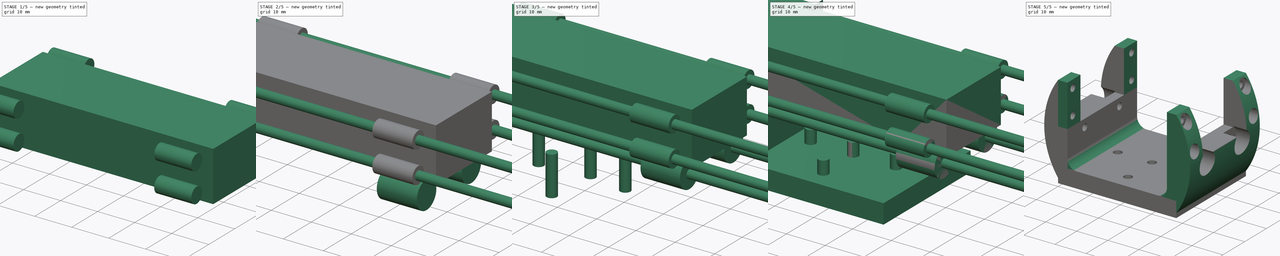
[diagram: build sequence overview — one tinted view per stage of 5, left to right]
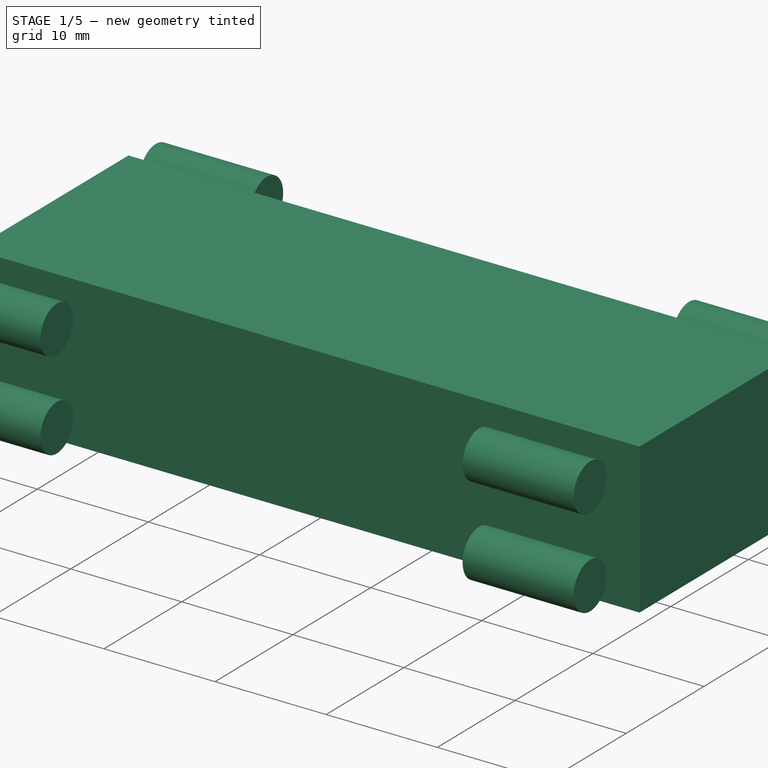
[diagram: stage 1 of 5 — iso view after this stage's code; geometry added in this stage tinted green]
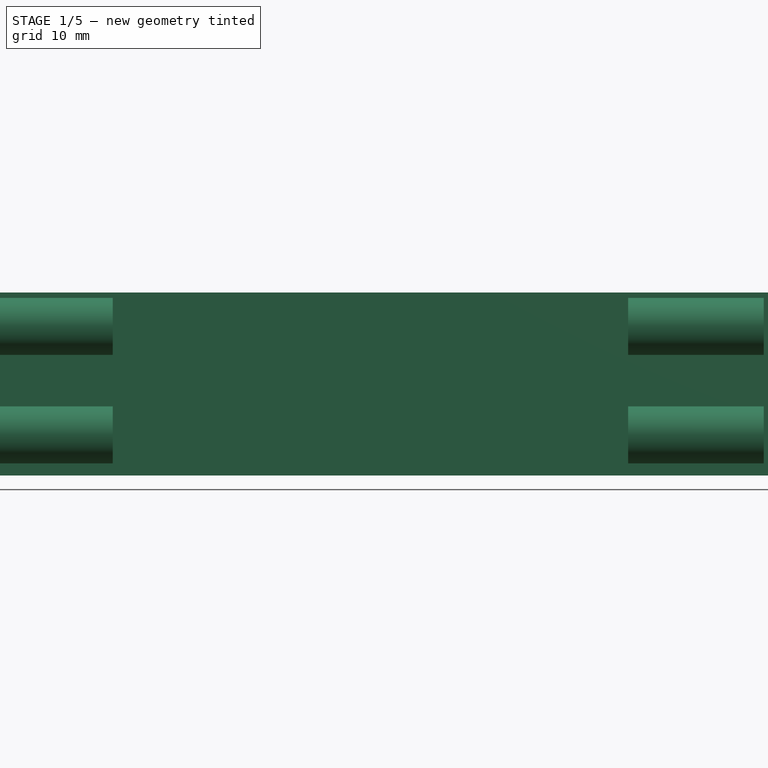
[diagram: stage 1 of 5 — front view after this stage's code; geometry added in this stage tinted green]
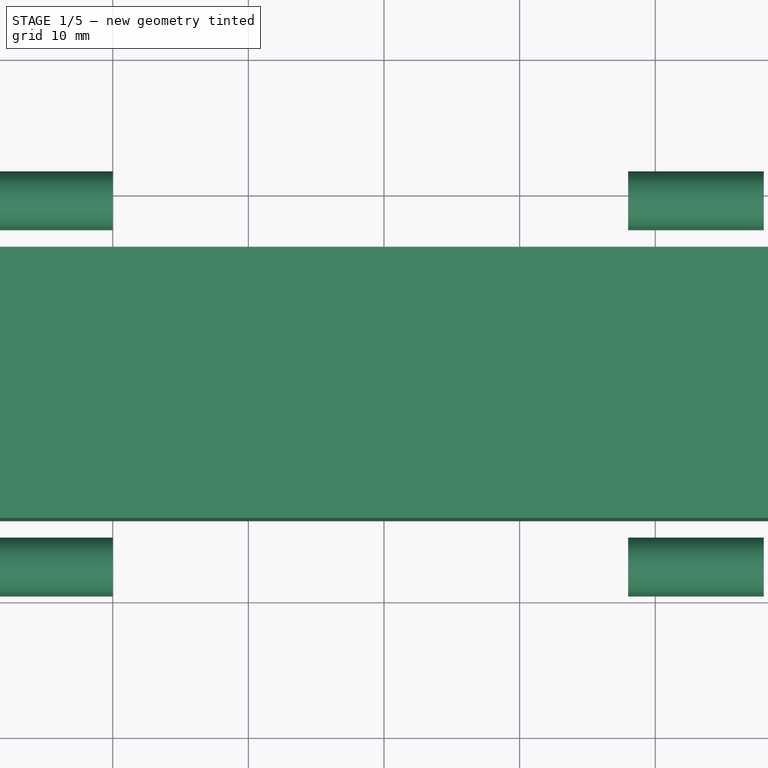
[diagram: stage 1 of 5 — top view after this stage's code; geometry added in this stage tinted green]
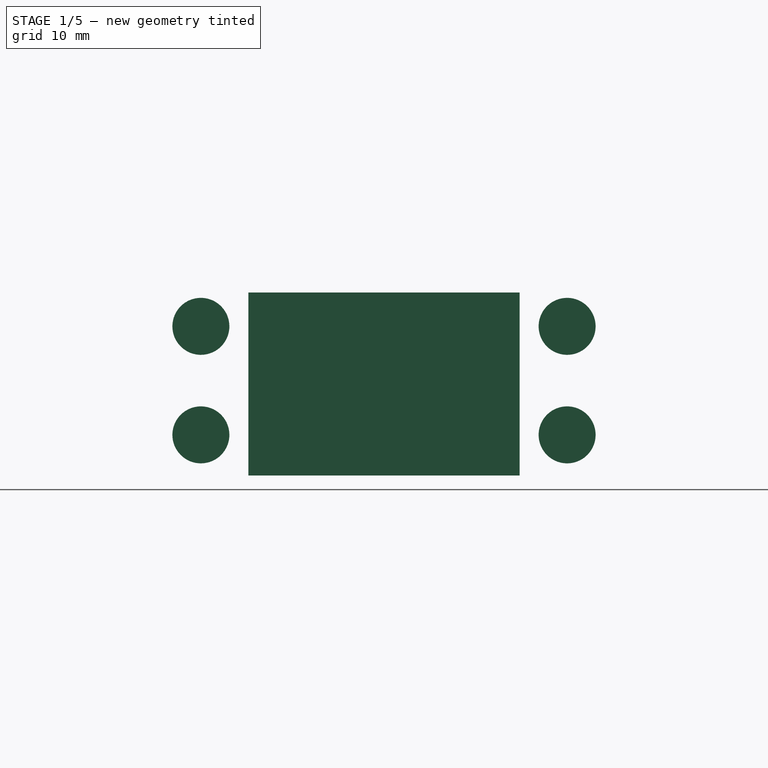
[diagram: stage 1 of 5 — right view after this stage's code; geometry added in this stage tinted green]
FCSTD DOCUMENT  (FreeCAD 0.15R4671 (Git))
Label: top_ax_12_short
License: CC-BY 3.0
LicenseURL: http://creativecommons.org/licenses/by/3.0/
objects: Part::Cylinder×23, Part::MultiFuse×9, Part::Box×8, Sketcher::SketchObject×1, Part::Extrusion×1, Part::Mirroring×1, Part::Cut×1, Part::Fillet×1
note: 45 computed .brp shape members not serialized (recipe doc carries the construction recipe); baked Part::Feature solids carry a one-line shape summary decoded from their .brp

FEATURE [Part::Cylinder] Cylinder015
  Angle = 360
  Height = 10
  Placement = pos=(-10,2.5,41) rot=(0,1,0;1.5708rad)
  Radius = 2.1
FEATURE [Part::Cylinder] Cylinder016
  Angle = 360
  Height = 10
  Placement = pos=(-10,2.5,33) rot=(0,1,0;1.5708rad)
  Radius = 2.1
FEATURE [Part::Cylinder] Cylinder017
  Angle = 360
  Height = 10
  Placement = pos=(-10,29.5,41) rot=(0,1,0;1.5708rad)
  Radius = 2.1
FEATURE [Part::Cylinder] Cylinder018
  Angle = 360
  Height = 10
  Placement = pos=(38,29.5,33) rot=(0,1,0;1.5708rad)
  Radius = 2.1
FEATURE [Part::Cylinder] Cylinder019
  Angle = 360
  Height = 10
  Placement = pos=(38,2.5,41) rot=(0,1,0;1.5708rad)
  Radius = 2.1
FEATURE [Part::Cylinder] Cylinder020
  Angle = 360
  Height = 10
  Placement = pos=(38,2.5,33) rot=(0,1,0;1.5708rad)
  Radius = 2.1
FEATURE [Part::Cylinder] Cylinder021
  Angle = 360
  Height = 10
  Placement = pos=(38,29.5,41) rot=(0,1,0;1.5708rad)
  Radius = 2.1
FEATURE [Part::Cylinder] Cylinder022
  Angle = 360
  Height = 10
  Placement = pos=(-10,29.5,33) rot=(0,1,0;1.5708rad)
  Radius = 2.1
FEATURE [Part::Box] Box007
  Height = 13.5
  Length = 60
  Placement = pos=(-10,6,30) rot=(0,0,1;0rad)
  Width = 20
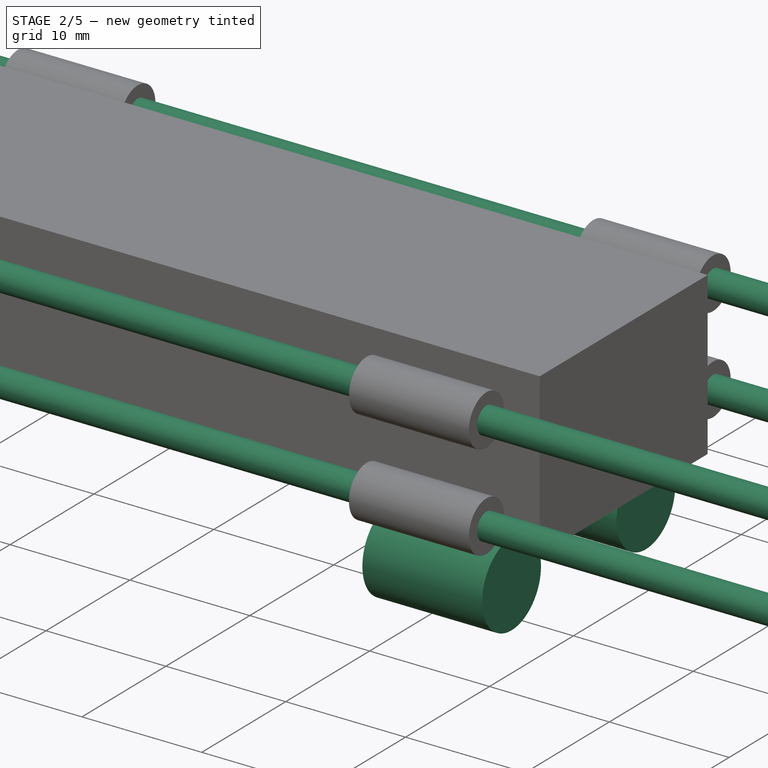
[diagram: stage 2 of 5 — iso view after this stage's code; geometry added in this stage tinted green]
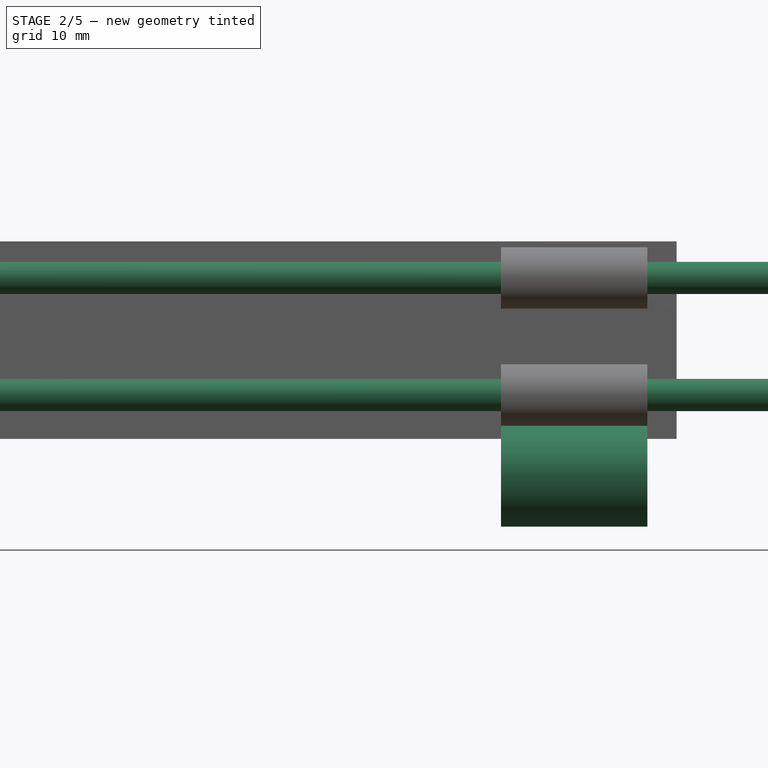
[diagram: stage 2 of 5 — front view after this stage's code; geometry added in this stage tinted green]
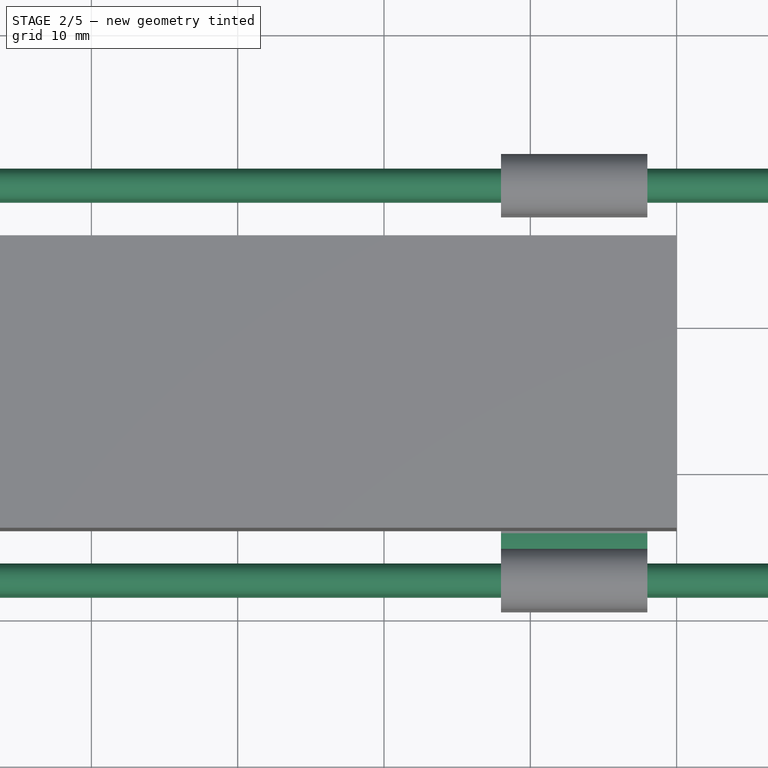
[diagram: stage 2 of 5 — top view after this stage's code; geometry added in this stage tinted green]
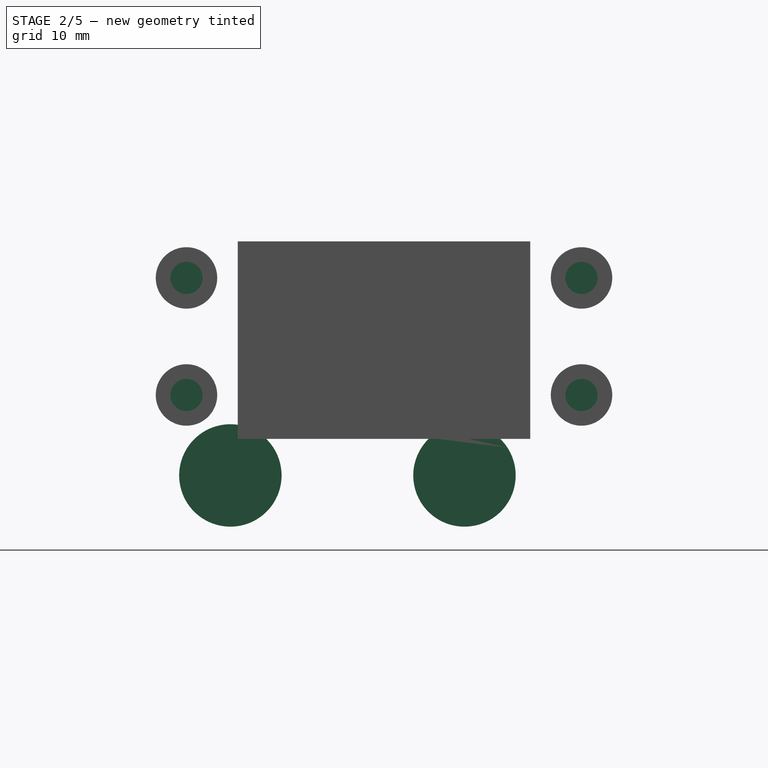
[diagram: stage 2 of 5 — right view after this stage's code; geometry added in this stage tinted green]
FEATURE [Part::Cylinder] Cylinder002
  Angle = 360
  Height = 10
  Placement = pos=(-10,5.5,27.5) rot=(0,1,0;1.5708rad)
  Radius = 3.5
FEATURE [Part::Cylinder] Cylinder003
  Angle = 360
  Height = 10
  Placement = pos=(-10,21.5,27.5) rot=(0,1,0;1.5708rad)
  Radius = 3.5
FEATURE [Part::Cylinder] Cylinder004
  Angle = 360
  Height = 10
  Placement = pos=(38,5.5,27.5) rot=(0,1,0;1.5708rad)
  Radius = 3.5
FEATURE [Part::Cylinder] Cylinder005
  Angle = 360
  Height = 10
  Placement = pos=(38,21.5,27.5) rot=(0,1,0;1.5708rad)
  Radius = 3.5
FEATURE [Part::Cylinder] Cylinder011
  Angle = 360
  Height = 100
  Placement = pos=(-20,2.5,41) rot=(0,1,0;1.5708rad)
  Radius = 1.1
FEATURE [Part::Cylinder] Cylinder012
  Angle = 360
  Height = 100
  Placement = pos=(-20,2.5,33) rot=(0,1,0;1.5708rad)
  Radius = 1.1
FEATURE [Part::Cylinder] Cylinder013
  Angle = 360
  Height = 100
  Placement = pos=(-20,29.5,41) rot=(0,1,0;1.5708rad)
  Radius = 1.1
FEATURE [Part::Cylinder] Cylinder014
  Angle = 360
  Height = 100
  Placement = pos=(-20,29.5,33) rot=(0,1,0;1.5708rad)
  Radius = 1.1
FEATURE [Part::MultiFuse] Fusion009
  Shapes = -> [Box007,Cylinder022,Cylinder021,Cylinder020,Cylinder019,Cylinder018,Cylinder017,Cylinder016,Cylinder015,Cylinder014,Cylinder013,Cylinder012,Cylinder011]
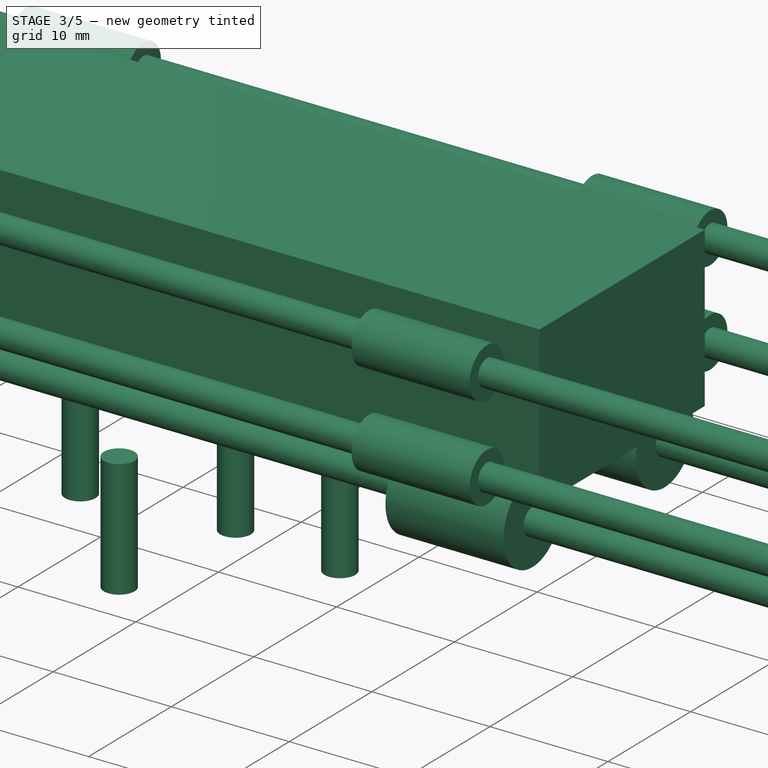
[diagram: stage 3 of 5 — iso view after this stage's code; geometry added in this stage tinted green]
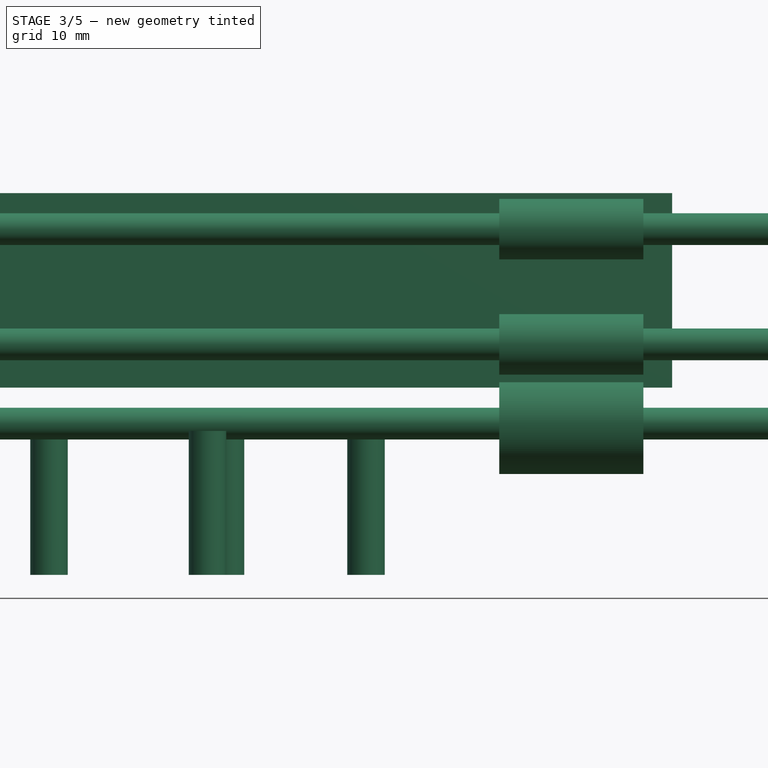
[diagram: stage 3 of 5 — front view after this stage's code; geometry added in this stage tinted green]
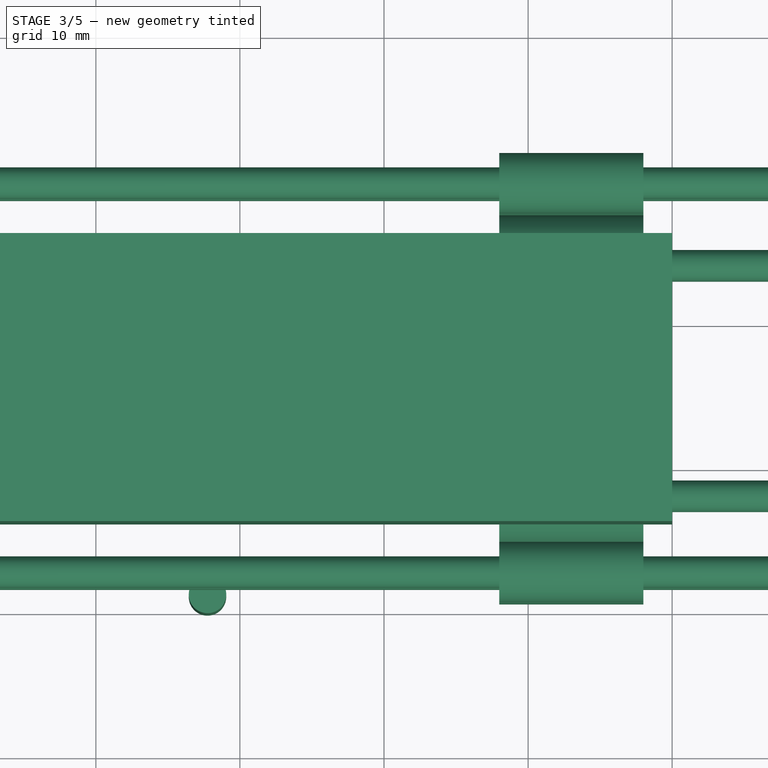
[diagram: stage 3 of 5 — top view after this stage's code; geometry added in this stage tinted green]
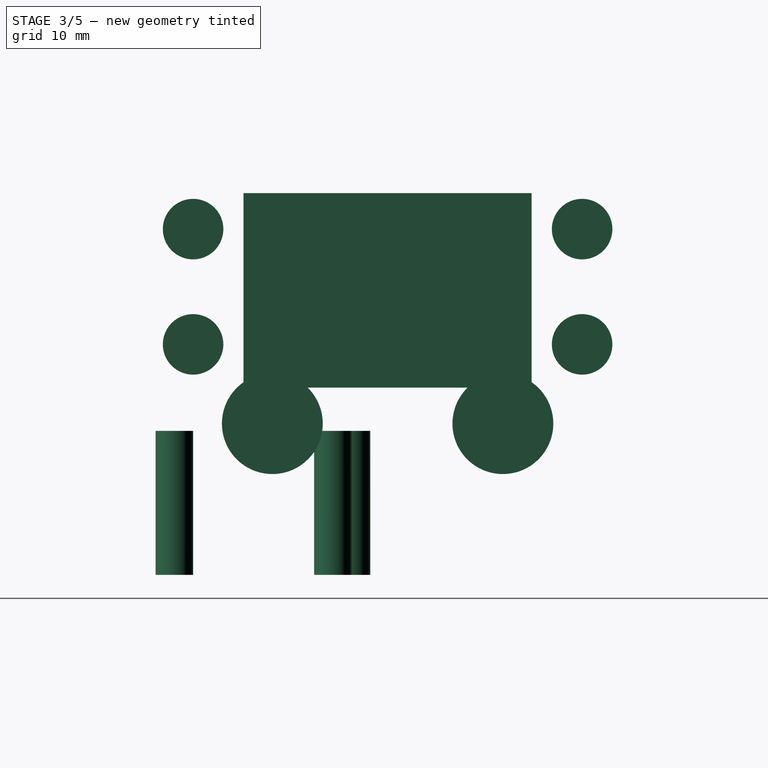
[diagram: stage 3 of 5 — right view after this stage's code; geometry added in this stage tinted green]
FEATURE [Part::Cylinder] Cylinder
  Angle = 360
  Height = 100
  Placement = pos=(-20,5.5,27.5) rot=(0,1,0;1.5708rad)
  Radius = 1.1
FEATURE [Part::Cylinder] Cylinder001
  Angle = 360
  Height = 100
  Placement = pos=(-20,21.5,27.5) rot=(0,1,0;1.5708rad)
  Radius = 1.1
FEATURE [Part::Cylinder] Cylinder007
  Angle = 360
  Height = 10
  Placement = pos=(17.75,1.2,-3) rot=(0,0,1;0rad)
  Radius = 1.3
FEATURE [Part::Cylinder] Cylinder008
  Angle = 360
  Height = 10
  Placement = pos=(28.75,12.2,-3) rot=(0,0,1;0rad)
  Radius = 1.3
FEATURE [Part::Cylinder] Cylinder009
  Angle = 360
  Height = 10
  Placement = pos=(6.75,12.2,-3) rot=(0,0,1;0rad)
  Radius = 1.3
FEATURE [Part::Cylinder] Cylinder010
  Angle = 360
  Height = 10
  Placement = pos=(19,13.5,-3) rot=(0,0,1;0rad)
  Radius = 1.3
FEATURE [Part::MultiFuse] Fusion005
  Placement = pos=(0,2.5,0) rot=(0,0,1;0rad)
  Shapes = -> [Cylinder,Cylinder001,Cylinder002,Cylinder003,Cylinder004,Cylinder005]
FEATURE [Part::MultiFuse] Fusion010
  Placement = pos=(0,0,-20) rot=(0,0,1;0rad)
  Shapes = -> [Fusion009,Fusion005]
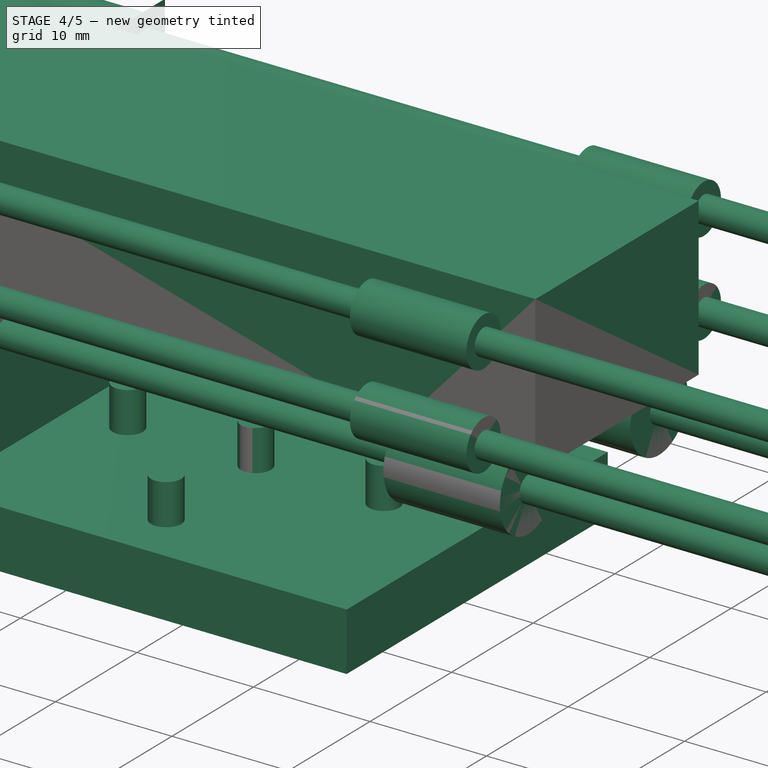
[diagram: stage 4 of 5 — iso view after this stage's code; geometry added in this stage tinted green]
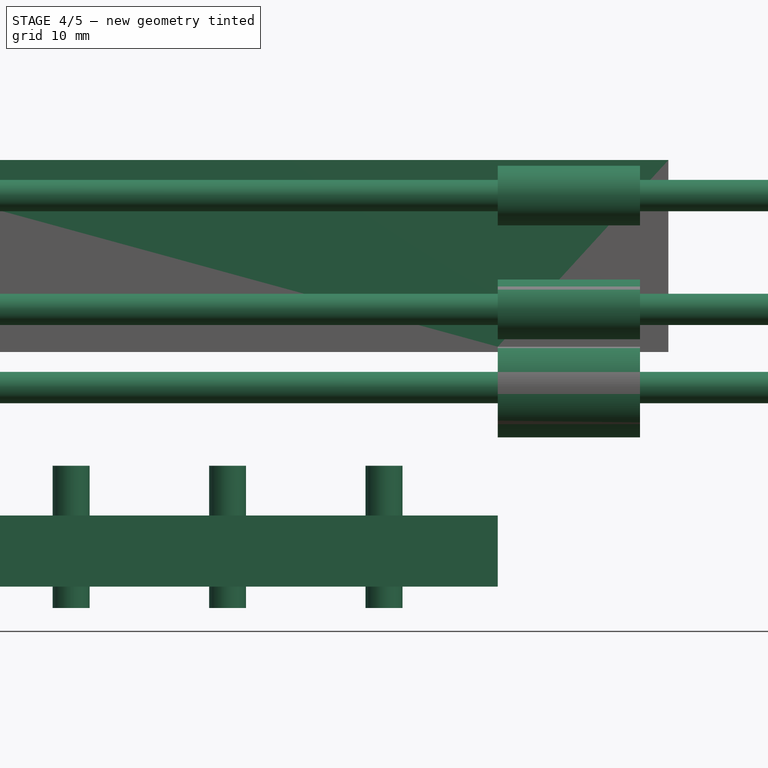
[diagram: stage 4 of 5 — front view after this stage's code; geometry added in this stage tinted green]
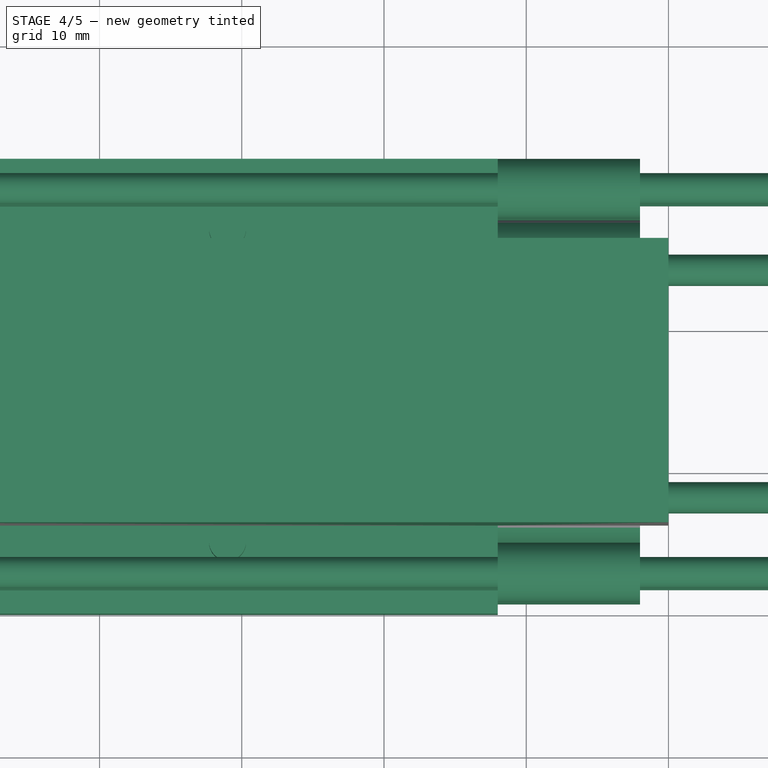
[diagram: stage 4 of 5 — top view after this stage's code; geometry added in this stage tinted green]
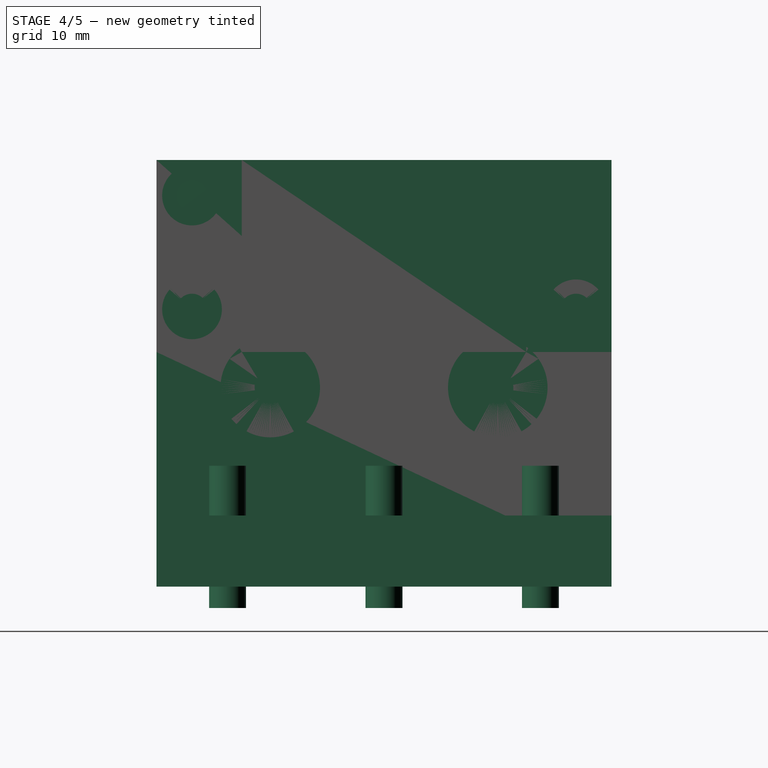
[diagram: stage 4 of 5 — right view after this stage's code; geometry added in this stage tinted green]
FEATURE [Part::Box] Box
  Height = 5
  Length = 38
  Placement = pos=(0,0,-1.5) rot=(0,0,1;0rad)
  Width = 32
FEATURE [Part::Box] Box001
  Height = 15
  Length = 3
  Width = 32
FEATURE [Part::Box] Box002
  Height = 15
  Length = 3
  Placement = pos=(35,0,0) rot=(0,0,1;0rad)
  Width = 32
FEATURE [Part::Cylinder] Cylinder006
  Angle = 360
  Height = 10
  Placement = pos=(17.75,23.2,-3) rot=(0,0,1;0rad)
  Radius = 1.3
FEATURE [Part::MultiFuse] Fusion
  Placement = pos=(1.25,1.3,0) rot=(0,0,1;0rad)
  Shapes = -> [Cylinder009,Cylinder008,Cylinder007,Cylinder006]
FEATURE [Part::MultiFuse] Fusion006
  Placement = pos=(0,2.5,-5) rot=(0,0,1;0rad)
  Shapes = -> [Fusion,Cylinder010]
FEATURE [Sketcher::SketchObject] Sketch001
  Placement = pos=(35,0,0) rot=(1,0,0;1.5708rad)
  Support = -> Box002 [Face3]
  sketch-geometry (2):
    g0: ArcOfCircle CenterX=-17.5411 CenterY=14.25 CenterZ=0 NormalX=0 NormalY=0 NormalZ=1 Radius=25 StartAngle=5.67668 EndAngle=6.88969
    g1: LineSegment StartX=3 StartY=28.5 StartZ=0 EndX=3 EndY=0 EndZ=0
  constraints (7):
    c: Radius(g0) = 25
    c: DistanceY(g0) = 14.25
    c: Coincident(g1,g0)
    c: PointOnObject(g1,g-1)
    c: Vertical(g1)
    c: Coincident(g0,g1)
    c: DistanceX(g0) = 3
FEATURE [Part::Extrusion] Extrude001
  Base = -> Sketch001
  Dir = (0,32,0)
  Solid = true
FEATURE [Part::Mirroring] Part__Mirroring  label="Extrude001 (Mirror #1)"
  Base = (0,0,0)
  Normal = (1,0,0)
  Placement = pos=(38,0,0) rot=(0,0,1;0rad)
  Source = -> Extrude001
FEATURE [Part::MultiFuse] Fusion014
  Placement = pos=(0,0,5) rot=(0,0,1;0rad)
  Shapes = -> [Fusion010,Fusion006]
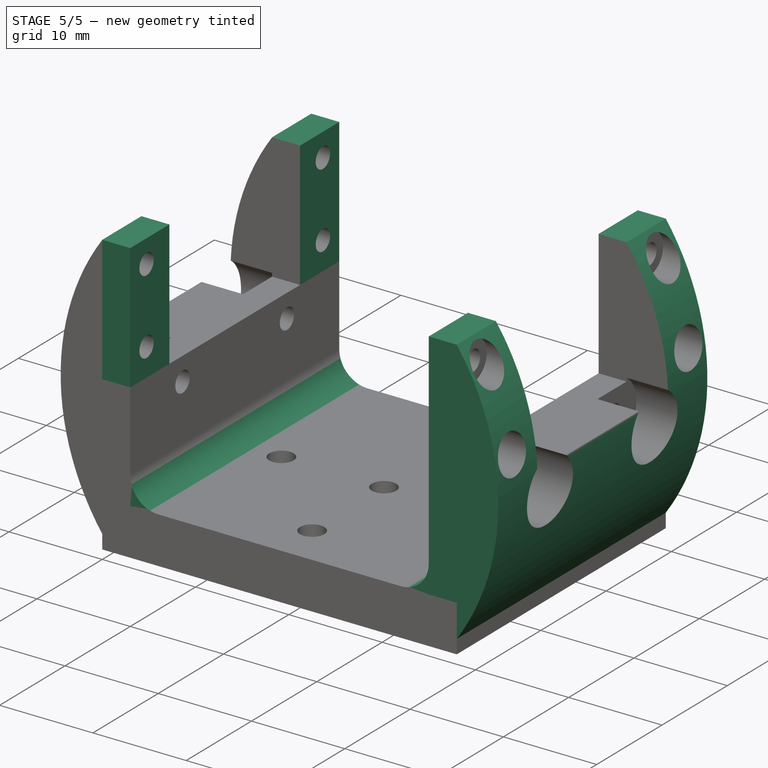
[diagram: stage 5 of 5 — iso view after this stage's code; geometry added in this stage tinted green]
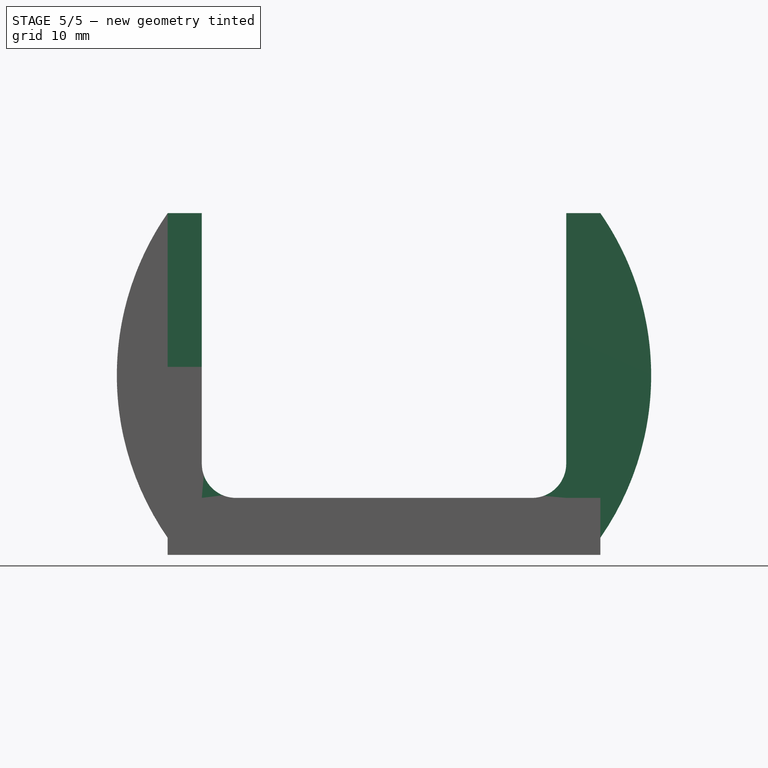
[diagram: stage 5 of 5 — front view after this stage's code; geometry added in this stage tinted green]
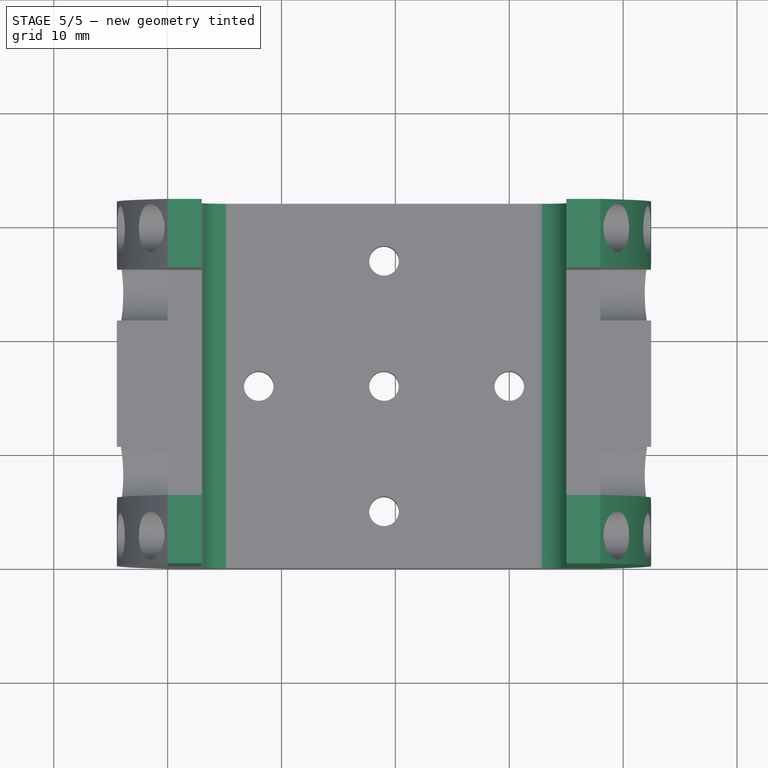
[diagram: stage 5 of 5 — top view after this stage's code; geometry added in this stage tinted green]
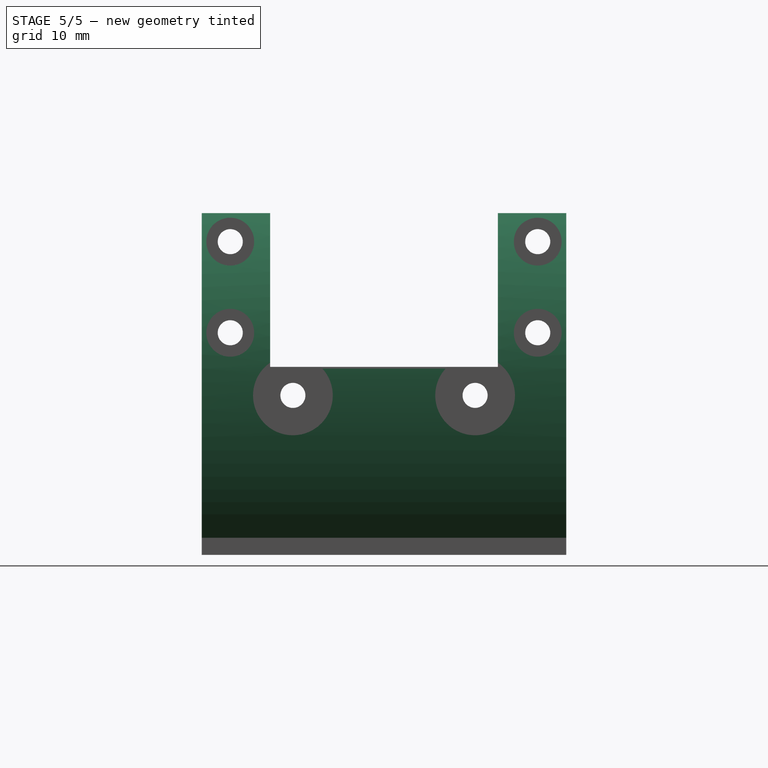
[diagram: stage 5 of 5 — right view after this stage's code; geometry added in this stage tinted green]
FEATURE [Part::Box] Box003
  Height = 13.5
  Length = 3
  Placement = pos=(0,0,10) rot=(0,0,1;0rad)
  Width = 6
FEATURE [Part::Box] Box004
  Height = 13.5
  Length = 3
  Placement = pos=(0,26,10) rot=(0,0,1;0rad)
  Width = 6
FEATURE [Part::Box] Box005
  Height = 13.5
  Length = 3
  Placement = pos=(35,0,10) rot=(0,0,1;0rad)
  Width = 6
FEATURE [Part::Box] Box006
  Height = 13.5
  Length = 3
  Placement = pos=(35,26,10) rot=(0,0,1;0rad)
  Width = 6
FEATURE [Part::MultiFuse] Fusion011
  Placement = pos=(0,0,5) rot=(0,0,1;0rad)
  Shapes = -> [Box006,Box005,Box004,Box003]
FEATURE [Part::MultiFuse] Fusion012
  Shapes = -> [Box,Box001,Box002]
FEATURE [Part::MultiFuse] Fusion013
  Shapes = -> [Fusion011,Fusion012,Part__Mirroring,Extrude001]
FEATURE [Part::Cut] Cut
  Base = -> Fusion013
  Tool = -> Fusion014
FEATURE [Part::Fillet] Fillet
  Base = -> Cut
  Edges = 2 edges r=3: [Edge14,Edge61]
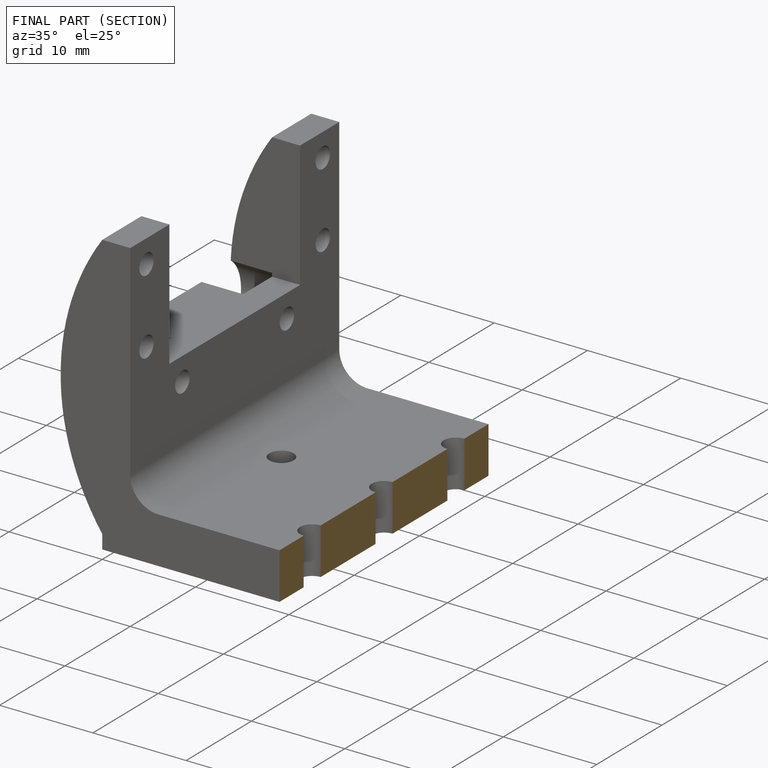
[diagram: finished part — half-section view (interior)]
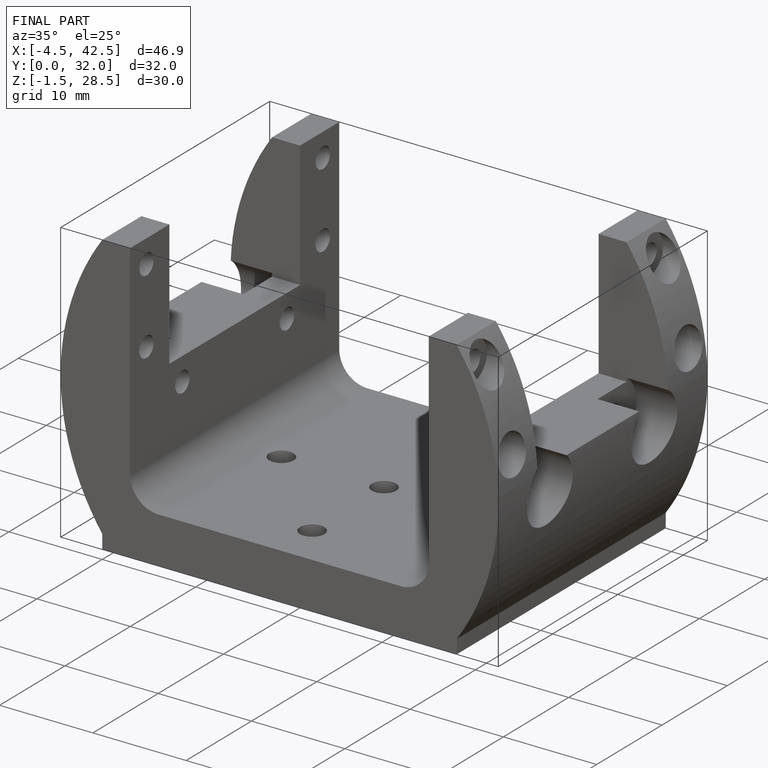
[diagram: finished part — iso view with bounding-box wireframe]
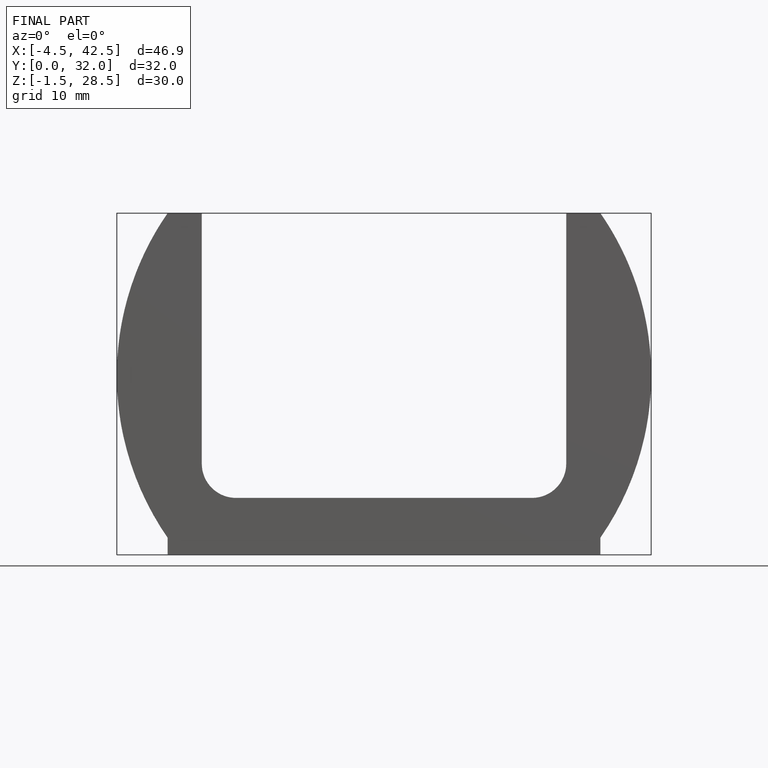
[diagram: finished part — front view with bounding-box wireframe]
